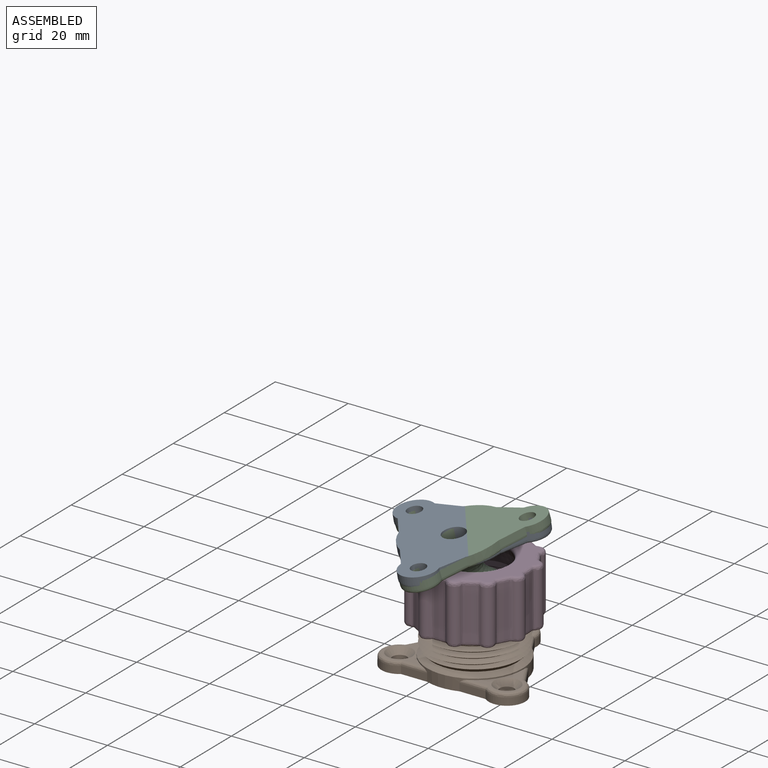
[diagram: assembled view]
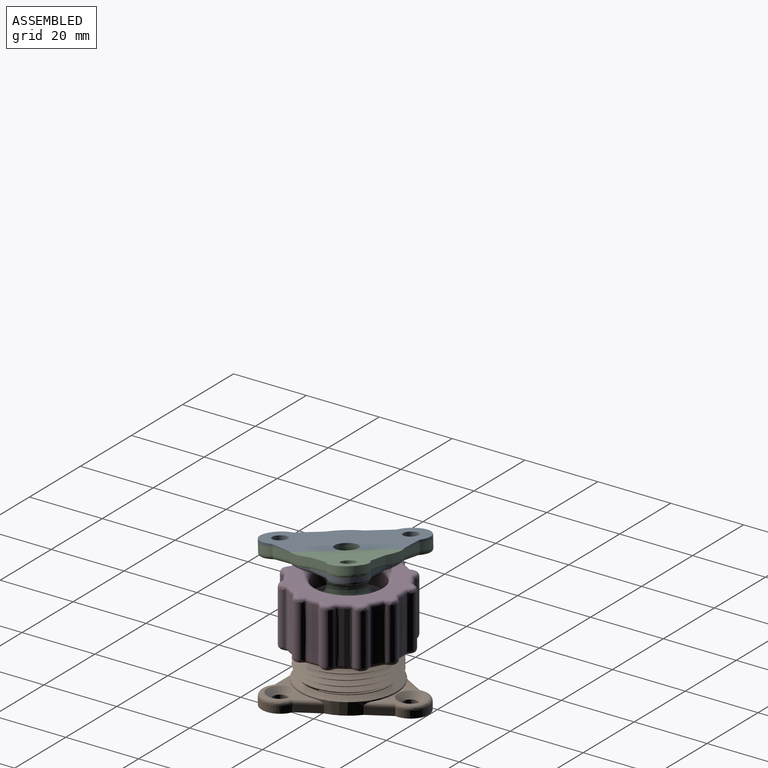
[diagram: assembled view, second angle]
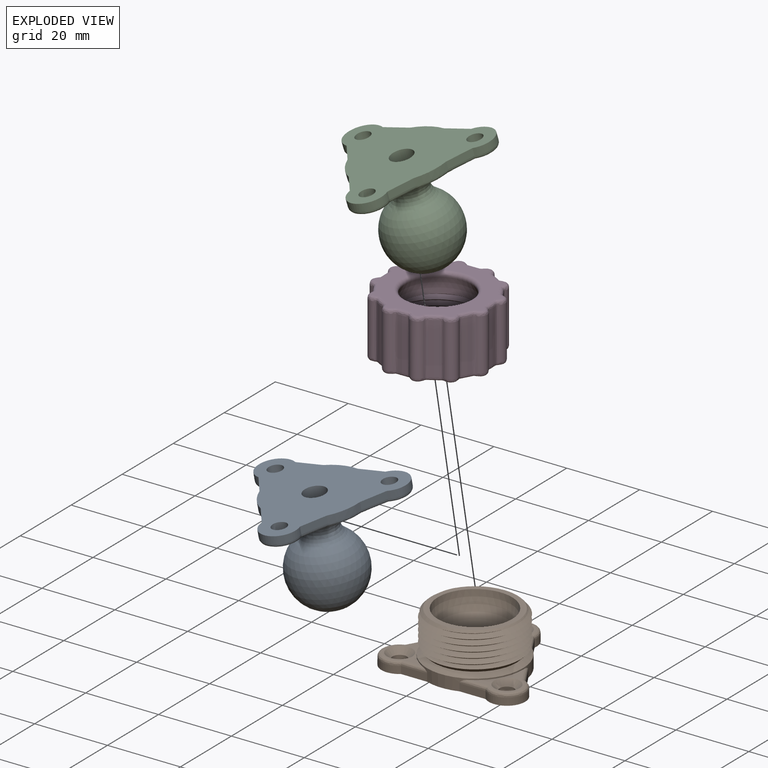
[diagram: exploded view]
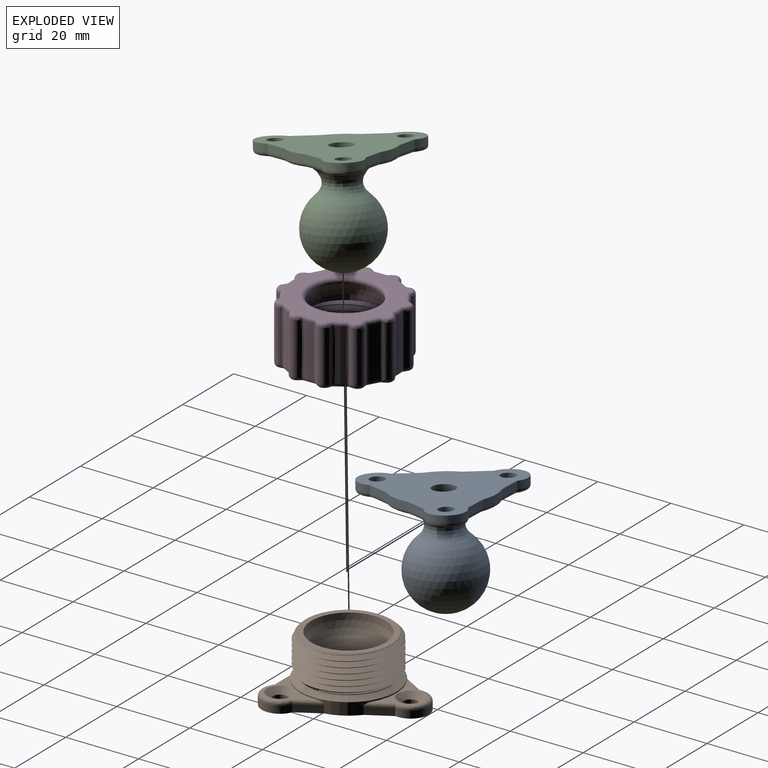
[diagram: exploded view, second angle]
ASSEMBLY  parts=4 mates=2
PART A: 40 faces, bbox 39.9x35.9x29.2 mm
  f0: plane 13.56x9.92mm, normal (0,0,-1), area 48.5mm2, adj f25,f27,f29,f35,f38
  f1: plane 12.87x12.55mm, normal (0,0,-1), area 48.5mm2, adj f26,f28,f30,f36,f38
  f2: plane 39.45x35.5mm, normal (0,0,1), area 761.5mm2, adj f5,f6,f7,f8,f9,f10,f11,f12
  f3: plane 12.87x12.55mm, normal (0,0,-1), area 48.5mm2, adj f20,f21,f22,f37,f38
  f4: sphere r=10mm, area 1114.8mm2, adj f39
  f5: cylinder r=2mm len=4mm, axis (0,0,-1), area 31.4mm2, adj f2,f35
  f6: cylinder r=2mm len=4mm, axis (0,0,-1), area 31.4mm2, adj f2,f37
  f7: cylinder r=2mm len=4mm, axis (0,0,-1), area 31.4mm2, adj f2,f36
  f8: plane 6.21x3.58mm, normal (0.87,0.5,0), area 14.3mm2, adj f2,f9,f12,f25
  f9: cylinder r=13.19mm len=7.7mm, axis (0,0,-1), area 18.1mm2, adj f2,f8,f10,f23
  f10: plane 6.21x3.58mm, normal (0.87,0.5,0), area 14.3mm2, adj f2,f9,f11,f21
  f11: cylinder r=5mm len=9.65mm, axis (0,0,-1), area 34.4mm2, adj f2,f10,f19,f20
  f12: cylinder r=5mm len=10mm, axis (0,0,-1), area 34.4mm2, adj f2,f8,f14,f27
  f13: cylinder r=13.19mm len=7.7mm, axis (0,0,-1), area 18.1mm2, adj f2,f14,f16,f31
  f14: plane 6.21x3.58mm, normal (-0.87,0.5,0), area 14.3mm2, adj f2,f12,f13,f29
  f15: cylinder r=5mm len=9.65mm, axis (0,0,-1), area 34.4mm2, adj f2,f16,f18,f28
  f16: plane 6.21x3.58mm, normal (-0.87,0.5,0), area 14.3mm2, adj f2,f13,f15,f30
  f17: cylinder r=13.19mm len=8.89mm, axis (0,0,-1), area 18.1mm2, adj f2,f18,f19,f24
  f18: plane 7.17x2mm, normal (0,-1,0), area 14.3mm2, adj f2,f15,f17,f26
  f19: plane 7.17x2mm, normal (0,-1,0), area 14.3mm2, adj f2,f11,f17,f22
  f20: bspline ~10.18x9.14mm, area 26.6mm2, adj f3,f11,f21,f22
  f21: bspline ~7.7x5.02mm, area 12.1mm2, adj f3,f10,f20,f23,f38
  f22: bspline ~8.31x1mm, area 12.1mm2, adj f3,f19,f20,f24,f38
  f23: bspline ~8.73x5.58mm, area 14.7mm2, adj f9,f21,f25,f38
  f24: bspline ~9.92x1.93mm, area 14.7mm2, adj f17,f22,f26,f38
  f25: bspline ~7.7x5.02mm, area 12.1mm2, adj f0,f8,f23,f27,f38
  f26: bspline ~8.31x1mm, area 12.1mm2, adj f1,f18,f24,f28,f38
  f27: bspline ~10.23x6.98mm, area 26.6mm2, adj f0,f12,f25,f29
  f28: bspline ~10.18x9.14mm, area 26.6mm2, adj f1,f15,f26,f30
  f29: bspline ~7.7x5.02mm, area 12.1mm2, adj f0,f14,f27,f31,f38
  f30: bspline ~7.7x5.02mm, area 12.1mm2, adj f1,f16,f28,f31,f38
  f31: bspline ~8.73x5.58mm, area 14.7mm2, adj f13,f29,f30,f38
  f32: cylinder r=3mm len=6mm, axis (0,0,1), area 84.8mm2, adj f2,f33
  f33: plane 6x6mm, normal (0,0,1), area 21.2mm2, adj f32,f34
  f34: cylinder r=1.5mm len=24.55mm, axis (0,0,1), area 231.4mm2, adj f33
  f35: cone r=2.5mm half-angle=45deg, axis (0,0,-1), area 10mm2, adj f0,f5
  f36: cone r=2.5mm half-angle=45deg, axis (0,0,-1), area 10mm2, adj f1,f7
  f37: cone r=2.5mm half-angle=45deg, axis (0,0,-1), area 10mm2, adj f3,f6
  f38: bspline ~25.98x25.98mm, area 440mm2, adj f0,f1,f3,f21,f22,f23,f24,f25
  f39: bspline ~12.65x12.65mm, area 206.2mm2, adj f4,f38
PART B: 41 faces, bbox 40x37.1x15.6 mm
  f0: plane 12.54x12.16mm, normal (0,0,1), area 27mm2, adj f12,f29,f32,f33,f34
  f1: plane 39.45x35.5mm, normal (0,0,-1), area 635.8mm2, adj f12,f15,f16,f17,f18,f19,f20,f21
  f2: plane 12.54x12.16mm, normal (0,0,1), area 27.1mm2, adj f12,f30,f35,f36,f37
  f3: plane 13.18x9.58mm, normal (0,0,1), area 27mm2, adj f12,f31,f38,f39,f40
  f4: sphere r=10.2mm, area 478.3mm2, adj f5,f14
  f5: plane 23.51x23.35mm, normal (0,0,1), area 102mm2, adj f4,f6,f8,f9
  f6: cone r=11.69mm half-angle=45deg, axis (0,0,-1), area 52.1mm2, adj f5,f8,f9
  f7: plane 0.8x0.59mm, normal (0,1,0), area 0.1mm2, adj f8,f9,f10
  f8: bspline ~29.63x25.66mm, area 706.5mm2, adj f5,f6,f7,f9,f10,f11
  f9: bspline ~29.63x25.66mm, area 696.6mm2, adj f5,f6,f7,f8,f11
  f10: cone r=13.19mm half-angle=45deg, axis (0,0,1), area 73mm2, adj f7,f8,f11,f28
  f11: cone r=13.19mm half-angle=45deg, axis (0,0,1), area 3.3mm2, adj f8,f9,f10
  f12: cylinder r=13.19mm len=26.38mm, axis (0,0,1), area 112.9mm2, adj f0,f1,f2,f3,f17,f18,f21,f23
  f13: cylinder r=6mm len=12mm, axis (0,0,1), area 205.7mm2, adj f14,f15
  f14: torus R=7mm, axis (0,0,1), area 34.5mm2, adj f4,f13
  f15: torus R=7mm, axis (0,0,-1), area 62.8mm2, adj f1,f13
  f16: cylinder r=2mm len=4mm, axis (0,0,1), area 18.8mm2, adj f1,f31
  f17: plane 6.21x3.58mm, normal (0.87,0.5,0), area 14.3mm2, adj f1,f12,f20,f38
  f18: plane 6.21x3.58mm, normal (0.87,0.5,0), area 14.3mm2, adj f1,f12,f19,f34
  f19: cylinder r=5mm len=9.65mm, axis (0,0,1), area 34.4mm2, adj f1,f18,f25,f33
  f20: cylinder r=5mm len=10mm, axis (0,0,1), area 34.4mm2, adj f1,f17,f21,f39
  f21: plane 6.21x3.58mm, normal (-0.87,0.5,0), area 14.3mm2, adj f1,f12,f20,f40
  f22: cylinder r=5mm len=9.65mm, axis (0,0,1), area 34.4mm2, adj f1,f23,f24,f36
  f23: plane 6.21x3.58mm, normal (-0.87,0.5,0), area 14.3mm2, adj f1,f12,f22,f35
  f24: plane 7.17x2mm, normal (0,-1,0), area 14.3mm2, adj f1,f12,f22,f37
  f25: plane 7.17x2mm, normal (0,-1,0), area 14.3mm2, adj f1,f12,f19,f32
  f26: cylinder r=2mm len=4mm, axis (0,0,1), area 18.8mm2, adj f1,f30
  f27: cylinder r=2mm len=4mm, axis (0,0,1), area 18.8mm2, adj f1,f29
  f28: cone r=11.19mm half-angle=60deg, axis (0,0,-1), area 150.8mm2, adj f10,f12
  f29: cone r=2mm half-angle=45deg, axis (0,0,1), area 36.7mm2, adj f0,f27
  f30: cone r=2mm half-angle=45deg, axis (0,0,1), area 36.7mm2, adj f2,f26
  f31: cone r=2mm half-angle=45deg, axis (0,0,1), area 36.7mm2, adj f3,f16
  f32: bspline ~8.21x1mm, area 10.2mm2, adj f0,f12,f25,f33
  f33: bspline ~10.18x9.14mm, area 26.6mm2, adj f0,f19,f32,f34
  f34: bspline ~7.61x4.97mm, area 10.6mm2, adj f0,f12,f18,f33
  f35: bspline ~7.61x4.97mm, area 10.2mm2, adj f2,f12,f23,f36
  f36: bspline ~10.18x9.14mm, area 26.6mm2, adj f2,f22,f35,f37
  f37: bspline ~8.21x1mm, area 10.2mm2, adj f2,f12,f24,f36
  f38: bspline ~7.61x4.97mm, area 10.2mm2, adj f3,f12,f17,f39
  f39: bspline ~10.23x6.98mm, area 26.6mm2, adj f3,f20,f38,f40
  f40: bspline ~7.61x4.97mm, area 10.2mm2, adj f3,f12,f21,f39
PART C: same geometry as A
PART D: 154 faces, bbox 33.6x33.6x18 mm
  f0: plane 30.39x30.39mm, normal (0,0,1), area 311.5mm2, adj f21,f35,f37,f38,f40,f41,f43,f44
  f1: cylinder r=14.69mm len=14.2mm, axis (0,0,1), area 36.5mm2, adj f99,f102,f105,f139
  f2: cylinder r=14.69mm len=14.2mm, axis (0,0,1), area 36.5mm2, adj f90,f95,f96,f131
  f3: cylinder r=14.69mm len=14.2mm, axis (0,0,1), area 36.5mm2, adj f78,f83,f84,f123
  f4: cylinder r=14.69mm len=14.2mm, axis (0,0,1), area 36.5mm2, adj f66,f71,f72,f115
  f5: cylinder r=14.69mm len=14.2mm, axis (0,0,1), area 36.5mm2, adj f54,f59,f60,f107
  f6: cylinder r=14.69mm len=14.2mm, axis (0,0,1), area 36.5mm2, adj f42,f47,f48,f112
  f7: cylinder r=14.69mm len=14.2mm, axis (0,0,1), area 36.5mm2, adj f34,f35,f36,f120
  f8: cylinder r=14.69mm len=14.2mm, axis (0,0,1), area 36.5mm2, adj f39,f45,f46,f128
  f9: cylinder r=14.69mm len=14.2mm, axis (0,0,1), area 36.5mm2, adj f51,f57,f58,f136
  f10: cylinder r=14.69mm len=14.2mm, axis (0,0,1), area 36.5mm2, adj f63,f69,f70,f144
  f11: cylinder r=14.69mm len=14.2mm, axis (0,0,1), area 36.5mm2, adj f75,f81,f82,f152
  f12: cylinder r=14.69mm len=14.2mm, axis (0,0,1), area 36.5mm2, adj f87,f93,f94,f147
  f13: plane 26.77x26.32mm, normal (0,0,-1), area 212.7mm2, adj f14,f15,f17,f18
  f14: cylinder r=13.19mm len=26.38mm, axis (0,0,1), area 31.7mm2, adj f13,f16,f17,f18,f19,f20
  f15: sphere r=10.2mm, area 291.8mm2, adj f13,f21
  f16: plane 31.35x31.35mm, normal (0,0,-1), area 124.2mm2, adj f14,f18,f19,f20,f106,f107,f108,f109
  f17: plane 1.14x1.11mm, normal (0.49,-0.87,0), area 0.8mm2, adj f13,f14,f18,f20
  f18: bspline ~30.46x26.38mm, area 761.1mm2, adj f13,f14,f16,f17,f19,f20
  f19: plane 0.67x0.39mm, normal (0,-1,0), area 0.1mm2, adj f14,f16,f18
  f20: bspline ~30.46x26.38mm, area 723.3mm2, adj f14,f16,f17,f18
  f21: torus R=10.02mm, axis (0,0,-1), area 119mm2, adj f0,f15
  f22: cylinder r=2mm len=14.2mm, axis (0,0,1), area 64.6mm2, adj f81,f87,f88,f151
  f23: cylinder r=2mm len=14.2mm, axis (0,0,1), area 64.6mm2, adj f69,f75,f76,f148
  f24: cylinder r=2mm len=14.2mm, axis (0,0,1), area 64.6mm2, adj f57,f63,f64,f140
  f25: cylinder r=2mm len=14.2mm, axis (0,0,1), area 64.6mm2, adj f45,f51,f52,f132
  f26: cylinder r=2mm len=14.2mm, axis (0,0,1), area 64.6mm2, adj f34,f39,f40,f124
  f27: cylinder r=2mm len=14.2mm, axis (0,0,1), area 64.6mm2, adj f36,f41,f42,f116
  f28: cylinder r=2mm len=14.2mm, axis (0,0,1), area 64.6mm2, adj f48,f53,f54,f108
  f29: cylinder r=2mm len=14.2mm, axis (0,0,1), area 64.6mm2, adj f60,f65,f66,f111
  f30: cylinder r=2mm len=14.2mm, axis (0,0,1), area 64.6mm2, adj f72,f77,f78,f119
  f31: cylinder r=2mm len=14.2mm, axis (0,0,1), area 64.6mm2, adj f84,f89,f90,f127
  f32: cylinder r=2mm len=14.2mm, axis (0,0,1), area 64.6mm2, adj f96,f101,f102,f135
  f33: cylinder r=2mm len=14.2mm, axis (0,0,1), area 64.6mm2, adj f93,f99,f100,f143
  f34: bspline ~16.72x0.86mm, area 13.7mm2, adj f7,f26,f37,f122
  f35: bspline ~2.46x2.46mm, area 4.1mm2, adj f0,f7,f37,f38
  f36: bspline ~16.72x0.86mm, area 13.7mm2, adj f7,f27,f38,f118
  f37: bspline ~1.71x1.36mm, area 2.1mm2, adj f0,f34,f35,f40
  f38: bspline ~1.71x1.36mm, area 2.1mm2, adj f0,f35,f36,f41
  f39: bspline ~16.72x0.92mm, area 13.7mm2, adj f8,f26,f43,f126
  f40: bspline ~3.18x2.29mm, area 6.1mm2, adj f0,f26,f37,f43
  f41: bspline ~3.18x2.29mm, area 6.1mm2, adj f0,f27,f38,f44
  f42: bspline ~16.72x0.92mm, area 13.7mm2, adj f6,f27,f44,f114
  f43: bspline ~1.84x1.19mm, area 2.1mm2, adj f0,f39,f40,f46
  f44: bspline ~1.84x1.19mm, area 2.1mm2, adj f0,f41,f42,f47
  f45: bspline ~16.72x0.73mm, area 13.7mm2, adj f8,f25,f49,f130
  f46: bspline ~2.65x1.6mm, area 4.1mm2, adj f0,f8,f43,f49
  f47: bspline ~2.65x1.6mm, area 4.1mm2, adj f0,f6,f44,f50
  f48: bspline ~16.72x0.73mm, area 13.7mm2, adj f6,f28,f50,f110
  f49: bspline ~1.64x1.55mm, area 2.1mm2, adj f0,f45,f46,f52
  f50: bspline ~1.64x1.55mm, area 2.1mm2, adj f0,f47,f48,f53
  f51: bspline ~16.72x0.73mm, area 13.7mm2, adj f9,f25,f55,f134
  f52: bspline ~3.63x1.69mm, area 6.1mm2, adj f0,f25,f49,f55
  f53: bspline ~3.63x1.69mm, area 6.1mm2, adj f0,f28,f50,f56
  f54: bspline ~16.72x0.73mm, area 13.7mm2, adj f5,f28,f56,f106
  f55: bspline ~1.64x1.55mm, area 2.1mm2, adj f0,f51,f52,f58
  f56: bspline ~1.64x1.55mm, area 2.1mm2, adj f0,f53,f54,f59
  f57: bspline ~16.72x0.92mm, area 13.7mm2, adj f9,f24,f61,f138
  f58: bspline ~2.65x1.6mm, area 4.1mm2, adj f0,f9,f55,f61
  f59: bspline ~2.65x1.6mm, area 4.1mm2, adj f0,f5,f56,f62
  f60: bspline ~16.72x0.92mm, area 13.7mm2, adj f5,f29,f62,f109
  f61: bspline ~1.84x1.19mm, area 2.1mm2, adj f0,f57,f58,f64
  f62: bspline ~1.84x1.19mm, area 2.1mm2, adj f0,f59,f60,f65
  f63: bspline ~16.72x0.86mm, area 13.7mm2, adj f10,f24,f67,f142
  f64: bspline ~3.18x2.29mm, area 6.1mm2, adj f0,f24,f61,f67
  f65: bspline ~3.18x2.29mm, area 6.1mm2, adj f0,f29,f62,f68
  f66: bspline ~16.72x0.86mm, area 13.7mm2, adj f4,f29,f68,f113
  f67: bspline ~1.71x1.36mm, area 2.1mm2, adj f0,f63,f64,f70
  f68: bspline ~1.71x1.36mm, area 2.1mm2, adj f0,f65,f66,f71
  f69: bspline ~16.72x0.86mm, area 13.7mm2, adj f10,f23,f73,f146
  f70: bspline ~2.46x2.46mm, area 4.1mm2, adj f0,f10,f67,f73
  f71: bspline ~2.46x2.46mm, area 4.1mm2, adj f0,f4,f68,f74
  f72: bspline ~16.72x0.86mm, area 13.7mm2, adj f4,f30,f74,f117
  f73: bspline ~1.71x1.36mm, area 2.1mm2, adj f0,f69,f70,f76
  f74: bspline ~1.71x1.36mm, area 2.1mm2, adj f0,f71,f72,f77
  f75: bspline ~16.72x0.92mm, area 13.7mm2, adj f11,f23,f79,f150
  f76: bspline ~3.18x2.29mm, area 6.1mm2, adj f0,f23,f73,f79
  f77: bspline ~3.18x2.29mm, area 6.1mm2, adj f0,f30,f74,f80
  f78: bspline ~16.72x0.92mm, area 13.7mm2, adj f3,f30,f80,f121
  f79: bspline ~1.84x1.19mm, area 2.1mm2, adj f0,f75,f76,f82
  f80: bspline ~1.84x1.19mm, area 2.1mm2, adj f0,f77,f78,f83
  f81: bspline ~16.72x0.73mm, area 13.7mm2, adj f11,f22,f85,f153
  f82: bspline ~2.65x1.6mm, area 4.1mm2, adj f0,f11,f79,f85
  f83: bspline ~2.65x1.6mm, area 4.1mm2, adj f0,f3,f80,f86
  f84: bspline ~16.72x0.73mm, area 13.7mm2, adj f3,f31,f86,f125
  f85: bspline ~1.64x1.55mm, area 2.1mm2, adj f0,f81,f82,f88
  f86: bspline ~1.64x1.55mm, area 2.1mm2, adj f0,f83,f84,f89
  f87: bspline ~16.72x0.73mm, area 13.7mm2, adj f12,f22,f91,f149
  f88: bspline ~3.63x1.69mm, area 6.1mm2, adj f0,f22,f85,f91
  f89: bspline ~3.63x1.69mm, area 6.1mm2, adj f0,f31,f86,f92
  f90: bspline ~16.72x0.73mm, area 13.7mm2, adj f2,f31,f92,f129
  f91: bspline ~1.64x1.55mm, area 2.1mm2, adj f0,f87,f88,f94
  f92: bspline ~1.64x1.55mm, area 2.1mm2, adj f0,f89,f90,f95
  f93: bspline ~16.72x0.92mm, area 13.7mm2, adj f12,f33,f97,f145
  f94: bspline ~2.65x1.6mm, area 4.1mm2, adj f0,f12,f91,f97
  f95: bspline ~2.65x1.6mm, area 4.1mm2, adj f0,f2,f92,f98
  f96: bspline ~16.72x0.92mm, area 13.7mm2, adj f2,f32,f98,f133
  f97: bspline ~1.84x1.19mm, area 2.1mm2, adj f0,f93,f94,f100
  f98: bspline ~1.84x1.19mm, area 2.1mm2, adj f0,f95,f96,f101
  f99: bspline ~16.72x0.86mm, area 13.7mm2, adj f1,f33,f103,f141
  f100: bspline ~3.18x2.29mm, area 6.1mm2, adj f0,f33,f97,f103
  f101: bspline ~3.18x2.29mm, area 6.1mm2, adj f0,f32,f98,f104
  f102: bspline ~16.72x0.86mm, area 13.7mm2, adj f1,f32,f104,f137
  f103: bspline ~1.71x1.36mm, area 2.1mm2, adj f0,f99,f100,f105
  f104: bspline ~1.71x1.36mm, area 2.1mm2, adj f0,f101,f102,f105
  f105: bspline ~2.46x2.46mm, area 4.1mm2, adj f0,f1,f103,f104
  f106: bspline ~1.64x1.55mm, area 2.1mm2, adj f16,f54,f107,f108
  f107: bspline ~2.65x1.6mm, area 4.1mm2, adj f5,f16,f106,f109
  f108: bspline ~3.63x1.69mm, area 6.1mm2, adj f16,f28,f106,f110
  f109: bspline ~1.84x1.19mm, area 2.1mm2, adj f16,f60,f107,f111
  f110: bspline ~1.64x1.55mm, area 2.1mm2, adj f16,f48,f108,f112
  f111: bspline ~3.18x2.29mm, area 6.1mm2, adj f16,f29,f109,f113
  f112: bspline ~2.65x1.6mm, area 4.1mm2, adj f6,f16,f110,f114
  f113: bspline ~1.71x1.36mm, area 2.1mm2, adj f16,f66,f111,f115
  f114: bspline ~1.84x1.19mm, area 2.1mm2, adj f16,f42,f112,f116
  f115: bspline ~2.46x2.46mm, area 4.1mm2, adj f4,f16,f113,f117
  f116: bspline ~3.18x2.29mm, area 6.1mm2, adj f16,f27,f114,f118
  f117: bspline ~1.71x1.36mm, area 2.1mm2, adj f16,f72,f115,f119
  f118: bspline ~1.71x1.36mm, area 2.1mm2, adj f16,f36,f116,f120
  f119: bspline ~3.18x2.29mm, area 6.1mm2, adj f16,f30,f117,f121
  f120: bspline ~2.46x2.46mm, area 4.1mm2, adj f7,f16,f118,f122
  f121: bspline ~1.84x1.19mm, area 2.1mm2, adj f16,f78,f119,f123
  f122: bspline ~1.71x1.36mm, area 2.1mm2, adj f16,f34,f120,f124
  f123: bspline ~2.65x1.6mm, area 4.1mm2, adj f3,f16,f121,f125
  f124: bspline ~3.18x2.29mm, area 6.1mm2, adj f16,f26,f122,f126
  f125: bspline ~1.64x1.55mm, area 2.1mm2, adj f16,f84,f123,f127
  f126: bspline ~1.84x1.19mm, area 2.1mm2, adj f16,f39,f124,f128
  f127: bspline ~3.63x1.69mm, area 6.1mm2, adj f16,f31,f125,f129
  f128: bspline ~2.65x1.6mm, area 4.1mm2, adj f8,f16,f126,f130
  f129: bspline ~1.64x1.55mm, area 2.1mm2, adj f16,f90,f127,f131
  f130: bspline ~1.64x1.55mm, area 2.1mm2, adj f16,f45,f128,f132
  f131: bspline ~2.65x1.6mm, area 4.1mm2, adj f2,f16,f129,f133
  f132: bspline ~3.63x1.69mm, area 6.1mm2, adj f16,f25,f130,f134
  f133: bspline ~1.84x1.19mm, area 2.1mm2, adj f16,f96,f131,f135
  f134: bspline ~1.64x1.55mm, area 2.1mm2, adj f16,f51,f132,f136
  f135: bspline ~3.18x2.29mm, area 6.1mm2, adj f16,f32,f133,f137
  f136: bspline ~2.65x1.6mm, area 4.1mm2, adj f9,f16,f134,f138
  f137: bspline ~1.71x1.36mm, area 2.1mm2, adj f16,f102,f135,f139
  f138: bspline ~1.84x1.19mm, area 2.1mm2, adj f16,f57,f136,f140
  f139: bspline ~2.46x2.46mm, area 4.1mm2, adj f1,f16,f137,f141
  f140: bspline ~3.18x2.29mm, area 6.1mm2, adj f16,f24,f138,f142
  f141: bspline ~1.71x1.36mm, area 2.1mm2, adj f16,f99,f139,f143
  f142: bspline ~1.71x1.36mm, area 2.1mm2, adj f16,f63,f140,f144
  f143: bspline ~3.18x2.29mm, area 6.1mm2, adj f16,f33,f141,f145
  f144: bspline ~2.46x2.46mm, area 4.1mm2, adj f10,f16,f142,f146
  f145: bspline ~1.84x1.19mm, area 2.1mm2, adj f16,f93,f143,f147
  f146: bspline ~1.71x1.36mm, area 2.1mm2, adj f16,f69,f144,f148
  f147: bspline ~2.65x1.6mm, area 4.1mm2, adj f12,f16,f145,f149
  f148: bspline ~3.18x2.29mm, area 6.1mm2, adj f16,f23,f146,f150
  f149: bspline ~1.64x1.55mm, area 2.1mm2, adj f16,f87,f147,f151
  f150: bspline ~1.84x1.19mm, area 2.1mm2, adj f16,f75,f148,f152
  f151: bspline ~3.63x1.69mm, area 6.1mm2, adj f16,f22,f149,f153
  f152: bspline ~2.65x1.6mm, area 4.1mm2, adj f11,f16,f150,f153
  f153: bspline ~1.64x1.55mm, area 2.1mm2, adj f16,f81,f151,f152
PLACE A rot(axis=(0.15,-0.06,-0.99),53.9deg) t=(3.77,-1.81,-0.59)mm
PLACE B t=(5.31,-0.66,0)mm fixed
PLACE C rot(axis=(0.25,-0.1,-0.96),55.1deg) t=(5.31,-0.66,-0.5)mm
PLACE D rot(axis=(0,0,-1),13.8deg) t=(5.31,-0.66,6.96)mm
MATE cylindrical D.f1 <-> B.f6  axis (0,0,-1) through (5.31,-0.66,6.96)mm
MATE ball C.f9 <-> B.f6  axis (-0.19,-0.16,0.97) through (5.31,-0.66,-0.5)mm
